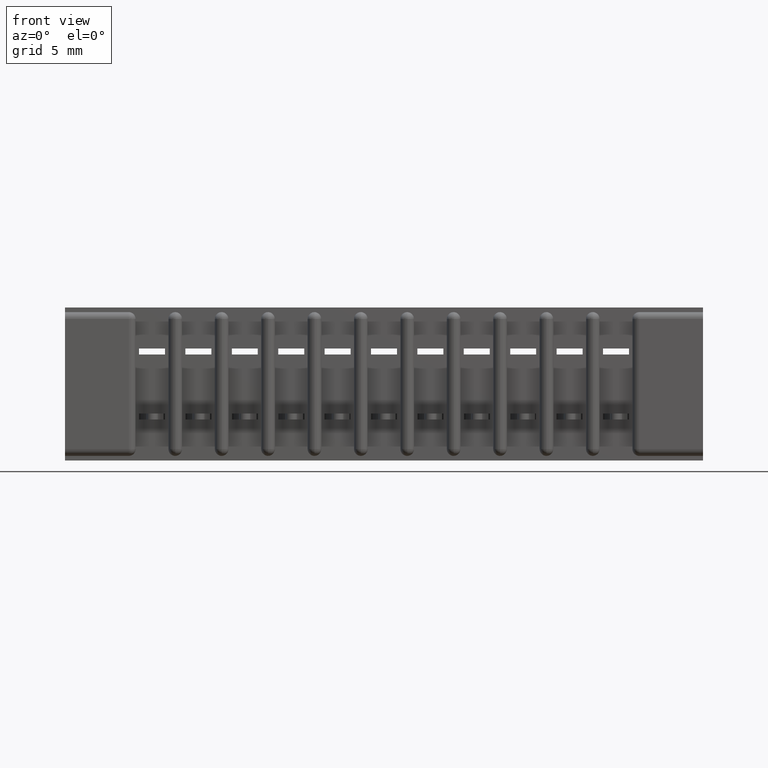
[diagram: clean part render]
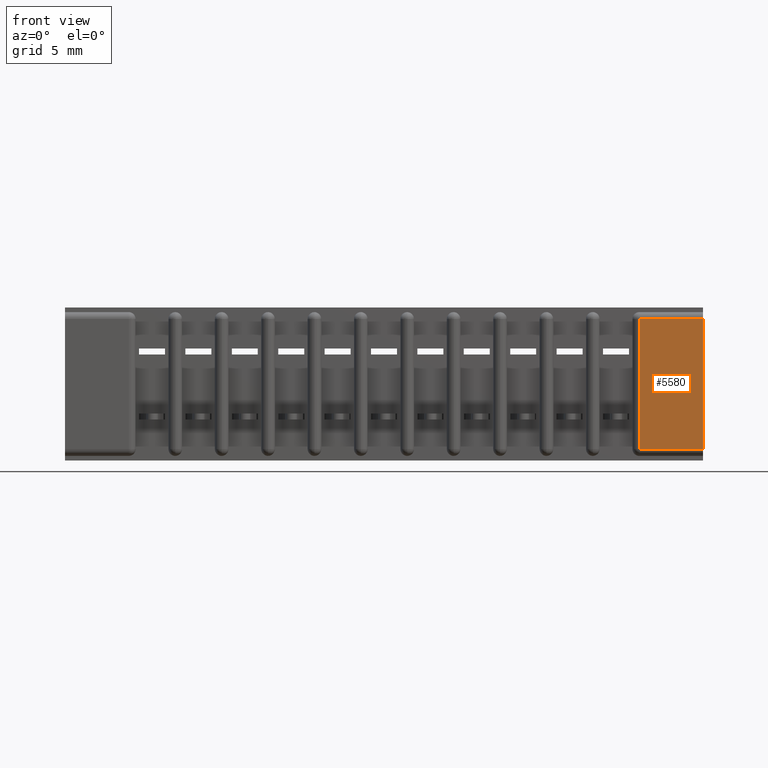
[diagram: same view with one face highlighted and labeled with its STEP entity id]
A machine part, front view. The second image highlights one B-rep face of the part: STEP entity #5580.
In plain terms, the highlighted planar face has unit normal (0, -1, 0).
Its self-contained STEP definition (entity closure, byte-faithful):
#172 = EDGE_CURVE ( 'NONE', #5297, #3236, #7696, .T. ) ;
#427 = DIRECTION ( 'NONE',  ( 0.0000000000000000000, -0.0000000000000000000, -1.000000000000000000 ) ) ;
#1094 = PLANE ( 'NONE',  #5736 ) ;
#1250 = CARTESIAN_POINT ( 'NONE',  ( 1.675000000000000000, 0.0000000000000000000, -0.3300000000000000200 ) ) ;
#2162 = EDGE_CURVE ( 'NONE', #3236, #15816, #16674, .T. ) ;
#2330 = VECTOR ( 'NONE', #5543, 39.37007874015748100 ) ;
#2420 = LINE ( 'NONE', #1250, #2330 ) ;
#3236 = VERTEX_POINT ( 'NONE', #11403 ) ;
#3330 = VERTEX_POINT ( 'NONE', #15693 ) ;
#3486 = CARTESIAN_POINT ( 'NONE',  ( 1.537750000000000600, 0.0000000000000000000, -0.3049999999999999400 ) ) ;
#5010 = CARTESIAN_POINT ( 'NONE',  ( 1.537750000000000600, 0.0000000000000000000, -0.3049999999999999400 ) ) ;
#5297 = VERTEX_POINT ( 'NONE', #11538 ) ;
#5451 = EDGE_CURVE ( 'NONE', #15816, #3330, #8426, .T. ) ;
#5543 = DIRECTION ( 'NONE',  ( 0.0000000000000000000, 0.0000000000000000000, 1.000000000000000000 ) ) ;
#5580 = ADVANCED_FACE ( 'NONE', ( #7886 ), #1094, .T. ) ;
#5736 = AXIS2_PLACEMENT_3D ( 'NONE', #14966, #14894, #427 ) ;
#5787 = ORIENTED_EDGE ( 'NONE', *, *, #172, .T. ) ;
#7048 = ORIENTED_EDGE ( 'NONE', *, *, #7153, .T. ) ;
#7153 = EDGE_CURVE ( 'NONE', #3330, #5297, #2420, .T. ) ;
#7595 = VECTOR ( 'NONE', #14616, 39.37007874015748100 ) ;
#7683 = DIRECTION ( 'NONE',  ( 0.0000000000000000000, 0.0000000000000000000, -1.000000000000000000 ) ) ;
#7696 = LINE ( 'NONE', #12808, #7595 ) ;
#7886 = FACE_OUTER_BOUND ( 'NONE', #9661, .T. ) ;
#8300 = VECTOR ( 'NONE', #14587, 39.37007874015748100 ) ;
#8426 = LINE ( 'NONE', #11897, #8300 ) ;
#9661 = EDGE_LOOP ( 'NONE', ( #5787, #14472, #12243, #7048 ) ) ;
#11403 = CARTESIAN_POINT ( 'NONE',  ( 1.537750000000000800, 0.0000000000000000000, -0.02499999999999997400 ) ) ;
#11538 = CARTESIAN_POINT ( 'NONE',  ( 1.675000000000000000, 0.0000000000000000000, -0.02499999999999997400 ) ) ;
#11897 = CARTESIAN_POINT ( 'NONE',  ( 1.675000000000000000, 0.0000000000000000000, -0.3049999999999999400 ) ) ;
#12243 = ORIENTED_EDGE ( 'NONE', *, *, #5451, .T. ) ;
#12808 = CARTESIAN_POINT ( 'NONE',  ( 0.2999999999999999300, 0.0000000000000000000, -0.02499999999999997400 ) ) ;
#14472 = ORIENTED_EDGE ( 'NONE', *, *, #2162, .T. ) ;
#14587 = DIRECTION ( 'NONE',  ( 1.000000000000000000, -0.0000000000000000000, -0.0000000000000000000 ) ) ;
#14616 = DIRECTION ( 'NONE',  ( -1.000000000000000000, 0.0000000000000000000, 0.0000000000000000000 ) ) ;
#14894 = DIRECTION ( 'NONE',  ( 0.0000000000000000000, -1.000000000000000000, 0.0000000000000000000 ) ) ;
#14966 = CARTESIAN_POINT ( 'NONE',  ( 0.0000000000000000000, 0.0000000000000000000, -0.3300000000000000200 ) ) ;
#15693 = CARTESIAN_POINT ( 'NONE',  ( 1.675000000000000000, 0.0000000000000000000, -0.3049999999999999400 ) ) ;
#15816 = VERTEX_POINT ( 'NONE', #5010 ) ;
#16614 = VECTOR ( 'NONE', #7683, 39.37007874015748100 ) ;
#16674 = LINE ( 'NONE', #3486, #16614 ) ;